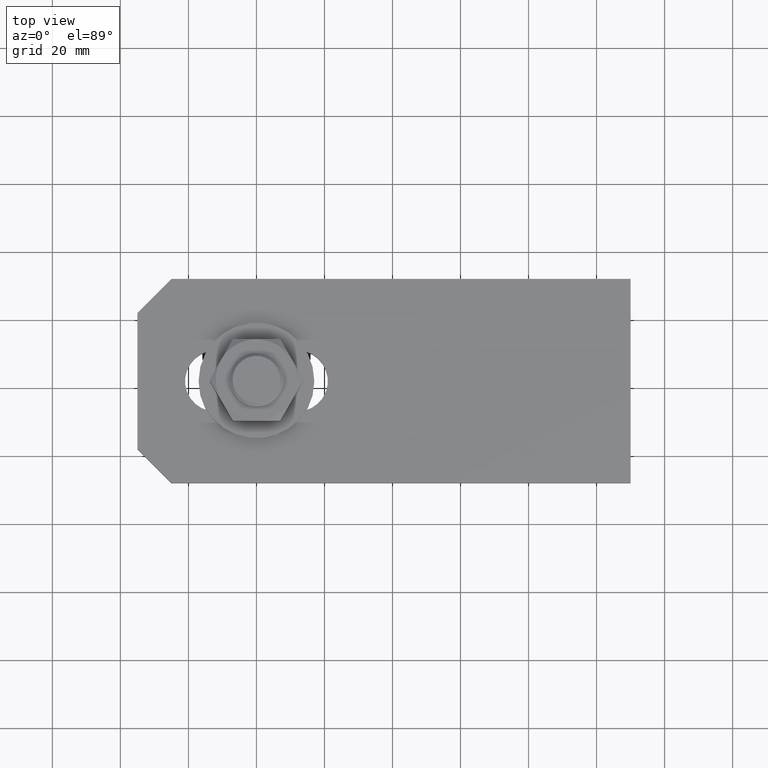
[diagram: clean part render]
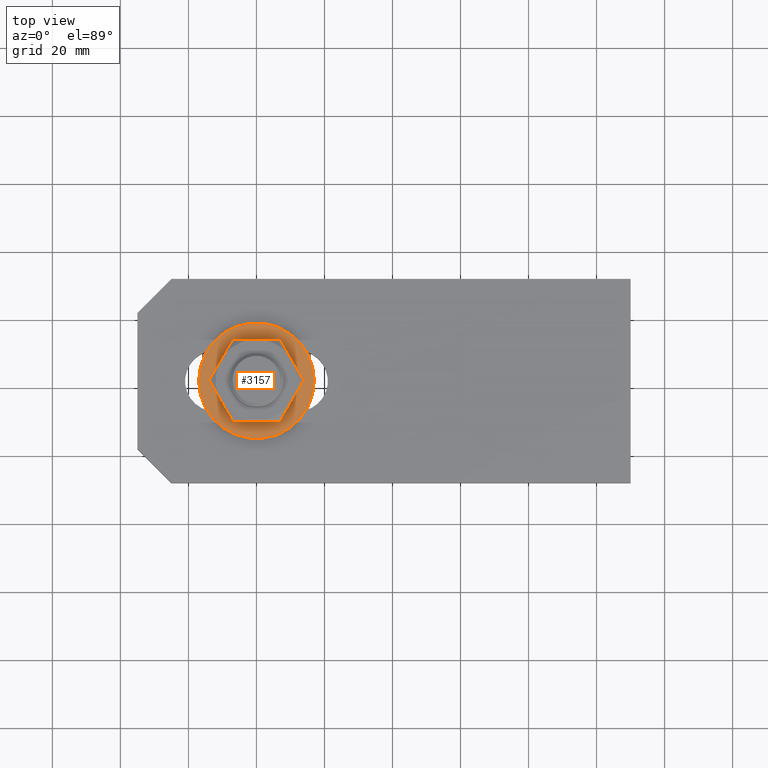
[diagram: same view with one face highlighted and labeled with its STEP entity id]
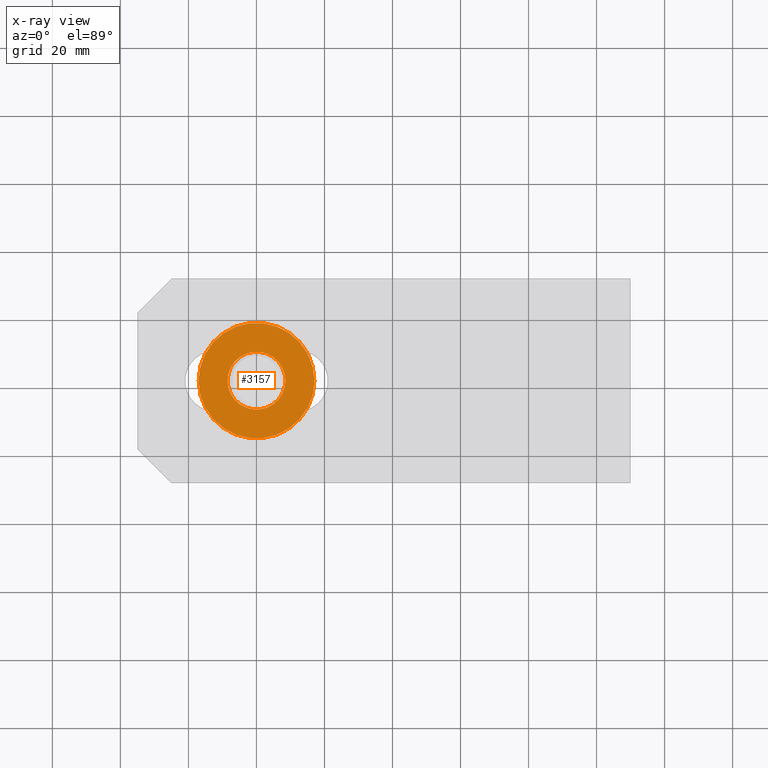
[diagram: x-ray of the same camera — body ghosted, the highlighted face saturated]
A machine part, top view. The second image highlights one B-rep face of the part: STEP entity #3157.
The next image is the same camera in x-ray: the body ghosted, the highlighted face saturated — about 0% of this face is hidden behind the body in this view.
In plain terms, the highlighted planar face has unit normal (0, 0, -1).
Its self-contained STEP definition (entity closure, byte-faithful):
#1541 = CARTESIAN_POINT ( 'NONE',  ( 0.000000000000000000, -3.330669073875475538E-15, -1.500000000000001332 ) ) ;
#2248 = PLANE ( 'NONE',  #19371 ) ;
#2362 = FACE_BOUND ( 'NONE', #9449, .T. ) ;
#2602 = CARTESIAN_POINT ( 'NONE',  ( 8.500000000000000000, 4.218847493575587754E-15, -1.500000000000001332 ) ) ;
#2836 = CIRCLE ( 'NONE', #8648, 17.00000000000000000 ) ;
#3157 = ADVANCED_FACE ( 'NONE', ( #8547, #2362 ), #2248, .F. ) ;
#4996 = VERTEX_POINT ( 'NONE', #20186 ) ;
#5124 = EDGE_CURVE ( 'NONE', #9520, #9520, #16368, .T. ) ;
#7338 = AXIS2_PLACEMENT_3D ( 'NONE', #18419, #9935, #20256 ) ;
#7668 = EDGE_CURVE ( 'NONE', #4996, #4996, #2836, .T. ) ;
#8444 = DIRECTION ( 'NONE',  ( 8.135128085091684243E-31, 2.220446049250313475E-15, 1.000000000000000000 ) ) ;
#8547 = FACE_OUTER_BOUND ( 'NONE', #10042, .T. ) ;
#8648 = AXIS2_PLACEMENT_3D ( 'NONE', #1541, #8444, #13768 ) ;
#8962 = ORIENTED_EDGE ( 'NONE', *, *, #5124, .T. ) ;
#9449 = EDGE_LOOP ( 'NONE', ( #8962 ) ) ;
#9520 = VERTEX_POINT ( 'NONE', #2602 ) ;
#9935 = DIRECTION ( 'NONE',  ( 8.135128085091684243E-31, 2.220446049250313475E-15, 1.000000000000000000 ) ) ;
#10042 = EDGE_LOOP ( 'NONE', ( #11383 ) ) ;
#11383 = ORIENTED_EDGE ( 'NONE', *, *, #7668, .F. ) ;
#13131 = CARTESIAN_POINT ( 'NONE',  ( 0.000000000000000000, -3.330669073875475538E-15, -1.500000000000001332 ) ) ;
#13768 = DIRECTION ( 'NONE',  ( 1.000000000000000000, 8.881784197001250351E-16, 0.000000000000000000 ) ) ;
#14965 = DIRECTION ( 'NONE',  ( -3.130791717595890603E-30, 2.220446049250313475E-15, 1.000000000000000000 ) ) ;
#16368 = CIRCLE ( 'NONE', #7338, 8.500000000000000000 ) ;
#18384 = DIRECTION ( 'NONE',  ( 1.000000000000000000, 8.881784197001251337E-16, 1.158639454543361089E-30 ) ) ;
#18419 = CARTESIAN_POINT ( 'NONE',  ( 0.000000000000000000, -3.330669073875475538E-15, -1.500000000000001332 ) ) ;
#19371 = AXIS2_PLACEMENT_3D ( 'NONE', #13131, #14965, #18384 ) ;
#20186 = CARTESIAN_POINT ( 'NONE',  ( 17.00000000000000000, 1.176836406102665144E-14, -1.500000000000001332 ) ) ;
#20256 = DIRECTION ( 'NONE',  ( 1.000000000000000000, 8.881784197001250351E-16, 0.000000000000000000 ) ) ;